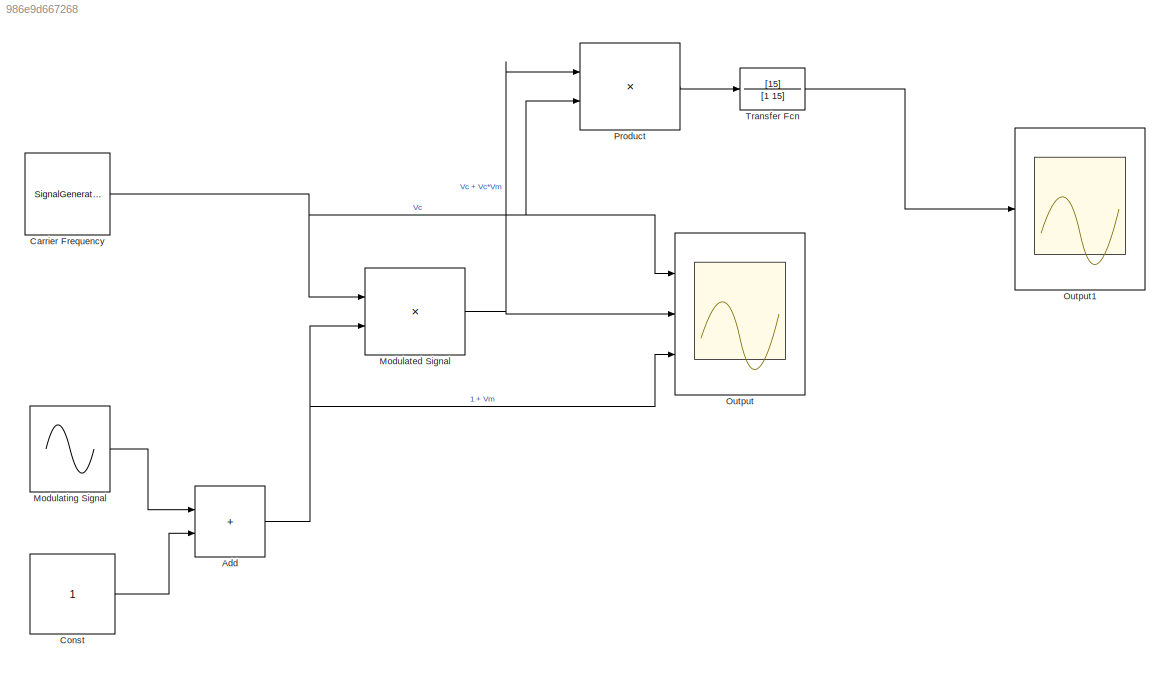
MODEL slx_986e9d667268
KIND model
CONFIG AbsTol = auto
CONFIG EnableMultiTasking = off
CONFIG FixedStep = auto
CONFIG MaxStep = auto
CONFIG MinStep = auto
CONFIG RelTol = 1e-3
CONFIG SampleTimeConstraint = Unconstrained
CONFIG SolverName = VariableStepAuto
CONFIG StartTime = 0.0
CONFIG StopTime = 10.0
BLOCK [Sum] Add
  IconShape = rectangular
  Ports = [2, 1]
BLOCK [SignalGenerator] Carrier Frequency
  Frequency = 2*pi*4500
  Ports = [0, 1]
  Units = rad/sec
BLOCK [Constant] Const
BLOCK [Product] Modulated Signal
  Ports = [2, 1]
BLOCK [Sin] Modulating Signal
  Amplitude = 0.5
  Frequency = 2*pi*100
  Ports = [0, 1]
  SampleTime = 0
BLOCK [Scope] Output
  Floating = off
  NumInputPorts = 3
  Ports = [3]
  ScopeSpecificationString = Simulink.scopes.TimeScopeBlockCfg('CurrentConfiguration', extmgr.ConfigurationSet(extmgr.Configuration('Core','General UI',true),extmgr.Configuration('Core','Source UI',true),extmgr.Configuration('Sources','WiredSimulink',true),extmgr.Configuration('Visuals','Time Domain',true,'SerializedDisplays',{struct('MinYLimReal','-1.56735','MaxYLimReal','1.77713','YLabelReal','','MinYLimMag','0.00000','MaxY...<+1789ch>
BLOCK [Scope] Output1
  Floating = off
  NumInputPorts = 1
  Ports = [1]
  ScopeSpecificationString = Simulink.scopes.TimeScopeBlockCfg('CurrentConfiguration', extmgr.ConfigurationSet(extmgr.Configuration('Core','General UI',true),extmgr.Configuration('Core','Source UI',true),extmgr.Configuration('Sources','WiredSimulink',true,'DataLoggingVariableName','ScopeData1'),extmgr.Configuration('Visuals','Time Domain',true,'SerializedDisplays',{struct('MinYLimReal','-0.75547','MaxYLimReal','1.56412','YLab...<+1785ch>
BLOCK [Product] Product
  Ports = [2, 1]
BLOCK [TransferFcn] Transfer Fcn
  Denominator = [1 15]
  Numerator = [15]
NET Add:1 -> Modulated Signal:2, Output:3
NET Carrier Frequency:1 -> Modulated Signal:1, Output:1, Product:2
LINE Const:1 -> Add:2
NET Modulated Signal:1 -> Output:2, Product:1
LINE Modulating Signal:1 -> Add:1
LINE Product:1 -> Transfer Fcn:1
LINE Transfer Fcn:1 -> Output1:1
note: NET lines group one-source signal fan-out (src -> all destinations, sorted); 1:1 wires keep LINE
